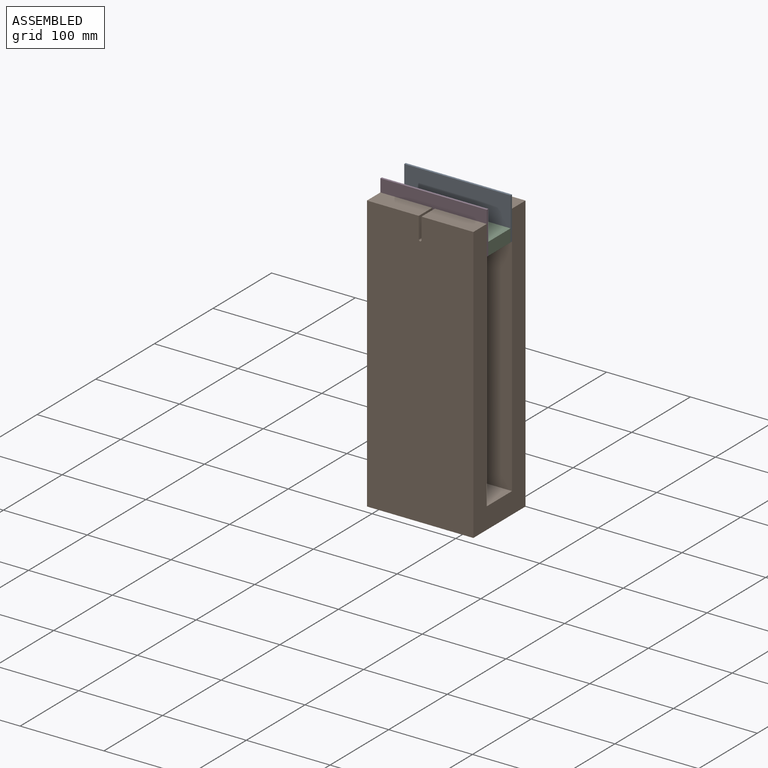
[diagram: assembled view]
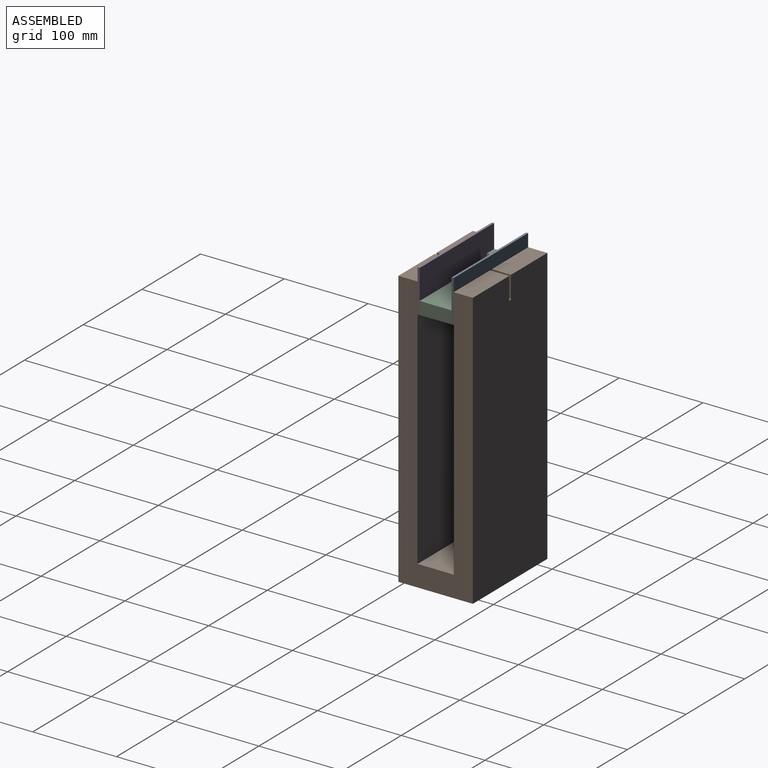
[diagram: assembled view, second angle]
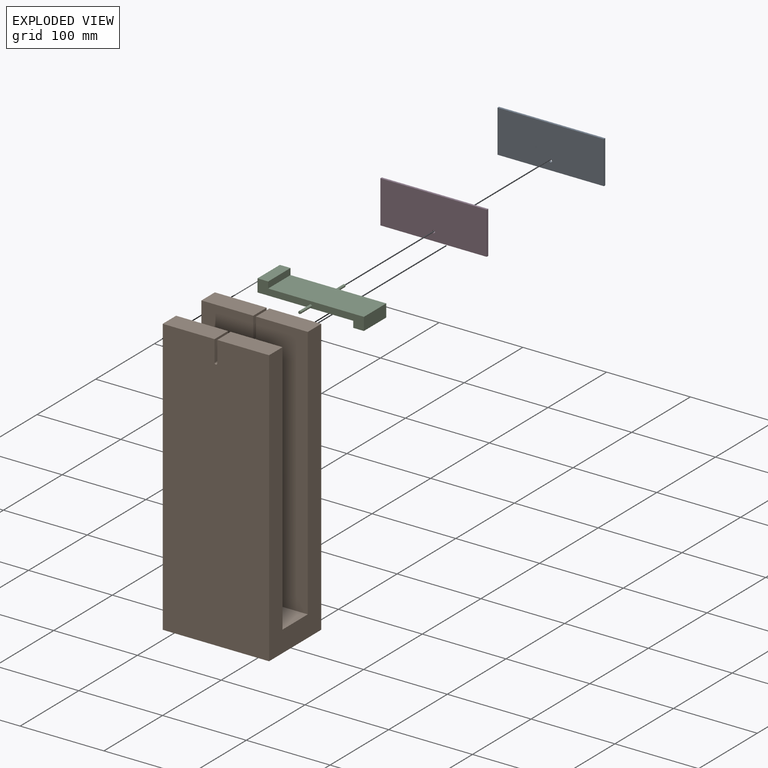
[diagram: exploded view]
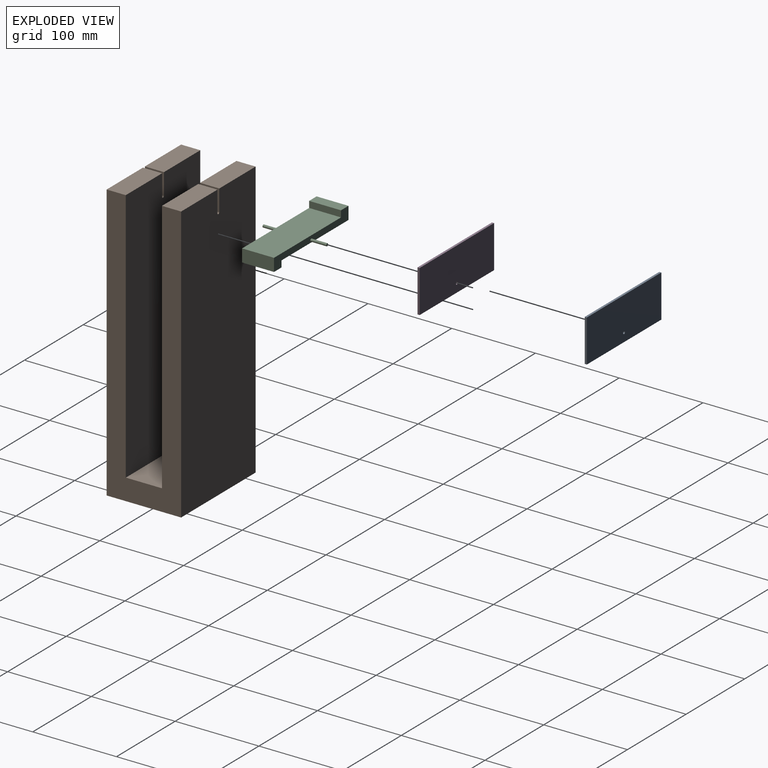
[diagram: exploded view, second angle]
ASSEMBLY  parts=4 mates=3
PART A: 7 faces, bbox 127x2.5x50.8 mm
  f0: plane 127x2.54mm, normal (0,0,-1), area 322.6mm2, adj f1,f4,f5,f6
  f1: plane 50.8x2.54mm, normal (1,0,0), area 129mm2, adj f0,f2,f5,f6
  f2: plane 127x2.54mm, normal (0,0,1), area 322.6mm2, adj f1,f4,f5,f6
  f3: cylinder r=1.59mm len=3.18mm, axis (0,1,0), area 25.3mm2, adj f5,f6
  f4: plane 50.8x2.54mm, normal (-1,0,0), area 129mm2, adj f0,f2,f5,f6
  f5: plane 127x50.8mm, normal (0,-1,0), area 6443.7mm2, adj f0,f1,f2,f3,f4
  f6: plane 127x50.8mm, normal (0,1,0), area 6443.7mm2, adj f0,f1,f2,f3,f4
PART B: 18 faces, bbox 127x88.9x330.2 mm
  f0: plane 61.91x22.86mm, normal (0,0,1), area 1415.3mm2, adj f3,f7,f8,f17
  f1: plane 61.91x22.86mm, normal (0,0,1), area 1415.3mm2, adj f2,f4,f8,f12
  f2: plane 330.2x127mm, normal (0,-1,0), area 41850.8mm2, adj f1,f6,f8,f9,f11,f12,f13,f14
  f3: plane 304.8x127mm, normal (0,-1,0), area 38625mm2, adj f0,f5,f6,f8,f10,f15,f16,f17
  f4: plane 304.8x127mm, normal (0,1,0), area 38625mm2, adj f1,f5,f6,f8,f11,f12,f13,f14
  f5: plane 127x43.18mm, normal (0,0,1), area 5483.9mm2, adj f3,f4,f6,f8
  f6: plane 330.2x88.9mm, normal (1,0,0), area 16193.5mm2, adj f2,f3,f4,f5,f7,f9,f10,f11
  f7: plane 330.2x127mm, normal (0,1,0), area 41850.8mm2, adj f0,f6,f8,f9,f10,f15,f16,f17
  f8: plane 330.2x88.9mm, normal (-1,0,0), area 16193.5mm2, adj f0,f1,f2,f3,f4,f5,f7,f9
  f9: plane 127x88.9mm, normal (0,0,-1), area 11290.3mm2, adj f2,f6,f7,f8
  f10: plane 61.91x22.86mm, normal (0,0,1), area 1415.3mm2, adj f3,f6,f7,f15
  f11: plane 61.91x22.86mm, normal (0,0,1), area 1415.3mm2, adj f2,f4,f6,f14
  f12: plane 25.4x22.86mm, normal (1,0,0), area 580.6mm2, adj f1,f2,f4,f13
  f13: cylinder r=1.59mm len=22.86mm, axis (0,1,0), area 114mm2, adj f2,f4,f12,f14
  f14: plane 25.4x22.86mm, normal (-1,0,0), area 580.6mm2, adj f2,f4,f11,f13
  f15: plane 25.4x22.86mm, normal (-1,0,0), area 580.6mm2, adj f3,f7,f10,f16
  f16: cylinder r=1.59mm len=22.86mm, axis (0,1,0), area 114mm2, adj f3,f7,f15,f17
  f17: plane 25.4x22.86mm, normal (1,0,0), area 580.6mm2, adj f0,f3,f7,f16
PART C: 14 faces, bbox 127x76.2x22.9 mm
  f0: plane 38.1x12.7mm, normal (0,0,1), area 483.9mm2, adj f1,f5,f6,f10
  f1: plane 127x22.86mm, normal (0,-1,0), area 1153.4mm2, adj f0,f2,f4,f6,f7,f10,f11,f12
  f2: cylinder r=1.59mm len=19.05mm, axis (0,-1,0), area 190mm2, adj f1,f3
  f3: plane 3.18x3.18mm, normal (0,-1,0), area 7.9mm2, adj f2
  f4: plane 38.1x15.24mm, normal (1,0,0), area 580.6mm2, adj f1,f5,f11,f13
  f5: plane 127x22.86mm, normal (0,1,0), area 1153.4mm2, adj f0,f4,f6,f7,f9,f10,f11,f12
  f6: plane 38.1x15.24mm, normal (-1,0,0), area 580.6mm2, adj f0,f1,f5,f7
  f7: plane 114.3x38.1mm, normal (0,0,-1), area 4354.8mm2, adj f1,f5,f6,f12
  f8: plane 3.18x3.18mm, normal (0,1,0), area 7.9mm2, adj f9
  f9: cylinder r=1.59mm len=19.05mm, axis (0,-1,0), area 190mm2, adj f5,f8
  f10: plane 38.1x7.62mm, normal (1,0,0), area 290.3mm2, adj f0,f1,f5,f11
  f11: plane 114.3x38.1mm, normal (0,0,1), area 4354.8mm2, adj f1,f4,f5,f10
  f12: plane 38.1x7.62mm, normal (-1,0,0), area 290.3mm2, adj f1,f5,f7,f13
  f13: plane 38.1x12.7mm, normal (0,0,-1), area 483.9mm2, adj f1,f4,f5,f12
PART D: same geometry as A
PLACE A t=(-43.08,266.85,87.63)mm
PLACE B t=(-43.08,245.26,-232.41)mm
PLACE C t=(-43.08,245.26,72.39)mm
PLACE D t=(-43.08,226.21,87.63)mm
MATE fastened D.f6 <-> C.f1  axis (0,1,0) through (20.42,226.21,62.23)mm
MATE revolute A.f3 <-> B.f13  axis (0,1,0) through (-43.08,266.85,72.39)mm
MATE fastened A.f5 <-> C.f5  axis (0,-1,0) through (20.42,264.31,62.23)mm
